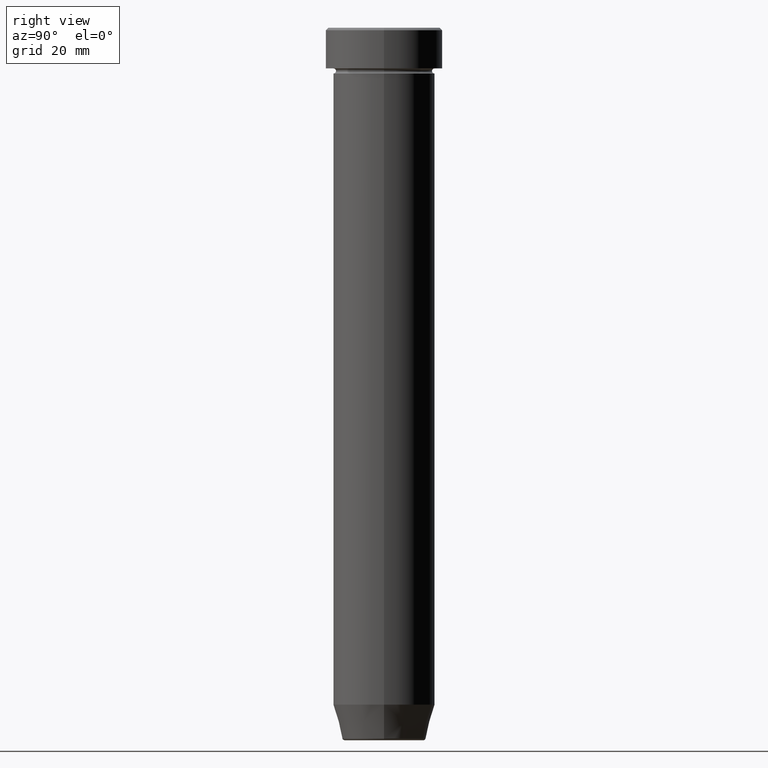
[diagram: clean part render]
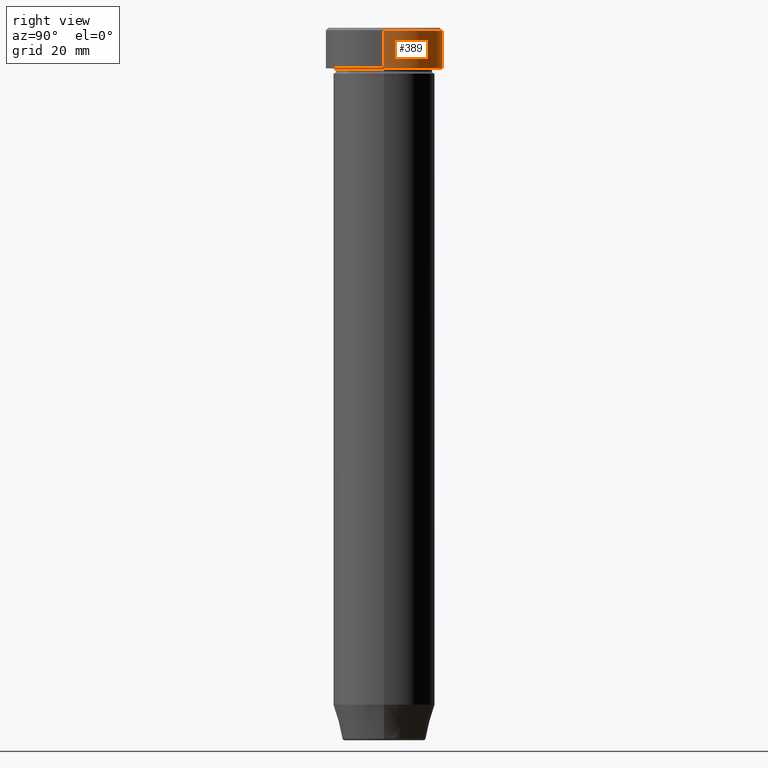
[diagram: same view with one face highlighted and labeled with its STEP entity id]
A machine part, right view. The second image highlights one B-rep face of the part: STEP entity #389.
In plain terms, the highlighted cylindrical surface (partial cylindrical patch) has radius 11.5 mm, axis along (-0, -0, 1).
Its self-contained STEP definition (entity closure, byte-faithful):
#4 = CYLINDRICAL_SURFACE ( 'NONE', #171, 11.50000000000000000 ) ;
#58 = CARTESIAN_POINT ( 'NONE',  ( 11.50000000000000000, 0.000000000000000000, -8.000000000000000000 ) ) ;
#60 = CARTESIAN_POINT ( 'NONE',  ( -11.50000000000000000, 1.408343819019456176E-15, 0.000000000000000000 ) ) ;
#84 = DIRECTION ( 'NONE',  ( 1.000000000000000000, 0.000000000000000000, 0.000000000000000000 ) ) ;
#119 = VERTEX_POINT ( 'NONE', #496 ) ;
#149 = CARTESIAN_POINT ( 'NONE',  ( 0.000000000000000000, 0.000000000000000000, -8.000000000000000000 ) ) ;
#151 = CIRCLE ( 'NONE', #558, 11.50000000000000000 ) ;
#171 = AXIS2_PLACEMENT_3D ( 'NONE', #513, #371, #433 ) ;
#190 = FACE_OUTER_BOUND ( 'NONE', #331, .T. ) ;
#193 = CARTESIAN_POINT ( 'NONE',  ( 11.50000000000000000, 0.000000000000000000, 0.000000000000000000 ) ) ;
#196 = DIRECTION ( 'NONE',  ( -0.000000000000000000, -0.000000000000000000, 1.000000000000000000 ) ) ;
#211 = ORIENTED_EDGE ( 'NONE', *, *, #483, .T. ) ;
#215 = EDGE_CURVE ( 'NONE', #552, #119, #228, .T. ) ;
#219 = VECTOR ( 'NONE', #511, 1000.000000000000000 ) ;
#228 = CIRCLE ( 'NONE', #321, 11.50000000000000000 ) ;
#237 = LINE ( 'NONE', #60, #219 ) ;
#245 = LINE ( 'NONE', #193, #432 ) ;
#310 = ORIENTED_EDGE ( 'NONE', *, *, #427, .T. ) ;
#321 = AXIS2_PLACEMENT_3D ( 'NONE', #360, #366, #84 ) ;
#329 = DIRECTION ( 'NONE',  ( -0.000000000000000000, -0.000000000000000000, 1.000000000000000000 ) ) ;
#331 = EDGE_LOOP ( 'NONE', ( #211, #310, #478, #572 ) ) ;
#360 = CARTESIAN_POINT ( 'NONE',  ( 0.000000000000000000, 0.000000000000000000, -0.5000000000000073275 ) ) ;
#366 = DIRECTION ( 'NONE',  ( 0.000000000000000000, 0.000000000000000000, -1.000000000000000000 ) ) ;
#371 = DIRECTION ( 'NONE',  ( -0.000000000000000000, -0.000000000000000000, 1.000000000000000000 ) ) ;
#372 = EDGE_CURVE ( 'NONE', #396, #119, #245, .T. ) ;
#377 = CARTESIAN_POINT ( 'NONE',  ( -11.50000000000000000, 1.408343819019456176E-15, -8.000000000000000000 ) ) ;
#389 = ADVANCED_FACE ( 'NONE', ( #190 ), #4, .T. ) ;
#396 = VERTEX_POINT ( 'NONE', #58 ) ;
#427 = EDGE_CURVE ( 'NONE', #450, #552, #237, .T. ) ;
#432 = VECTOR ( 'NONE', #196, 1000.000000000000000 ) ;
#433 = DIRECTION ( 'NONE',  ( 1.000000000000000000, 0.000000000000000000, 0.000000000000000000 ) ) ;
#450 = VERTEX_POINT ( 'NONE', #377 ) ;
#478 = ORIENTED_EDGE ( 'NONE', *, *, #215, .T. ) ;
#483 = EDGE_CURVE ( 'NONE', #396, #450, #151, .T. ) ;
#496 = CARTESIAN_POINT ( 'NONE',  ( 11.50000000000000000, 0.000000000000000000, -0.5000000000000073275 ) ) ;
#511 = DIRECTION ( 'NONE',  ( -0.000000000000000000, -0.000000000000000000, 1.000000000000000000 ) ) ;
#513 = CARTESIAN_POINT ( 'NONE',  ( 0.000000000000000000, 0.000000000000000000, 0.000000000000000000 ) ) ;
#552 = VERTEX_POINT ( 'NONE', #586 ) ;
#558 = AXIS2_PLACEMENT_3D ( 'NONE', #149, #329, #566 ) ;
#566 = DIRECTION ( 'NONE',  ( 1.000000000000000000, 0.000000000000000000, 0.000000000000000000 ) ) ;
#572 = ORIENTED_EDGE ( 'NONE', *, *, #372, .F. ) ;
#586 = CARTESIAN_POINT ( 'NONE',  ( -11.50000000000000000, 1.408343819019456176E-15, -0.5000000000000073275 ) ) ;